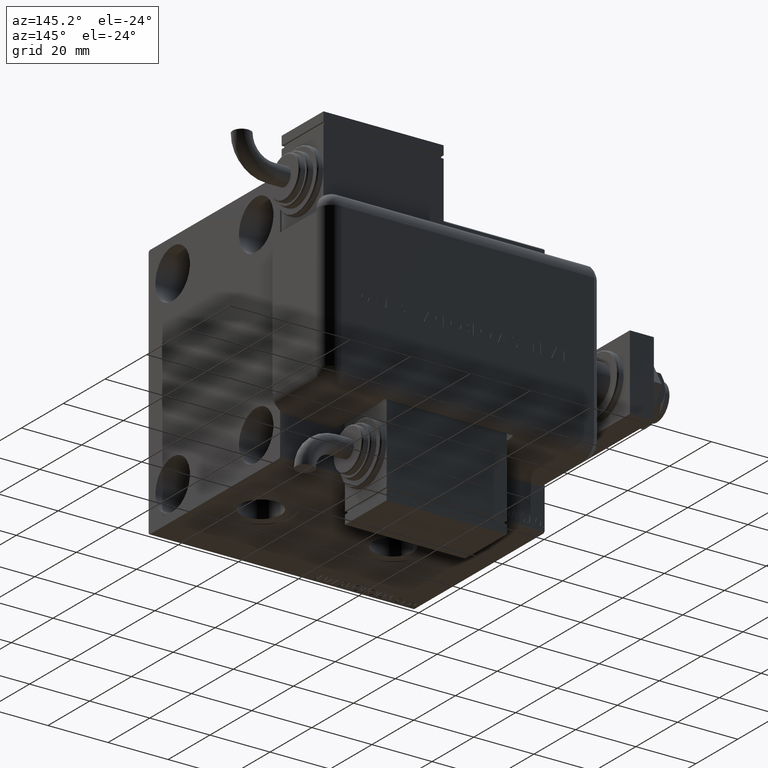
[diagram: clean part render]
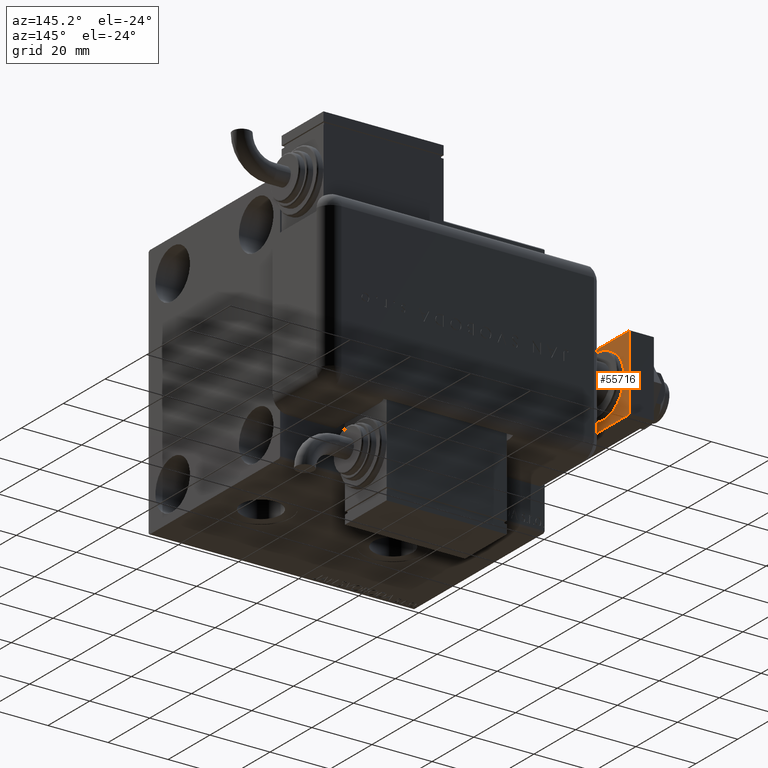
[diagram: same view with one face highlighted and labeled with its STEP entity id]
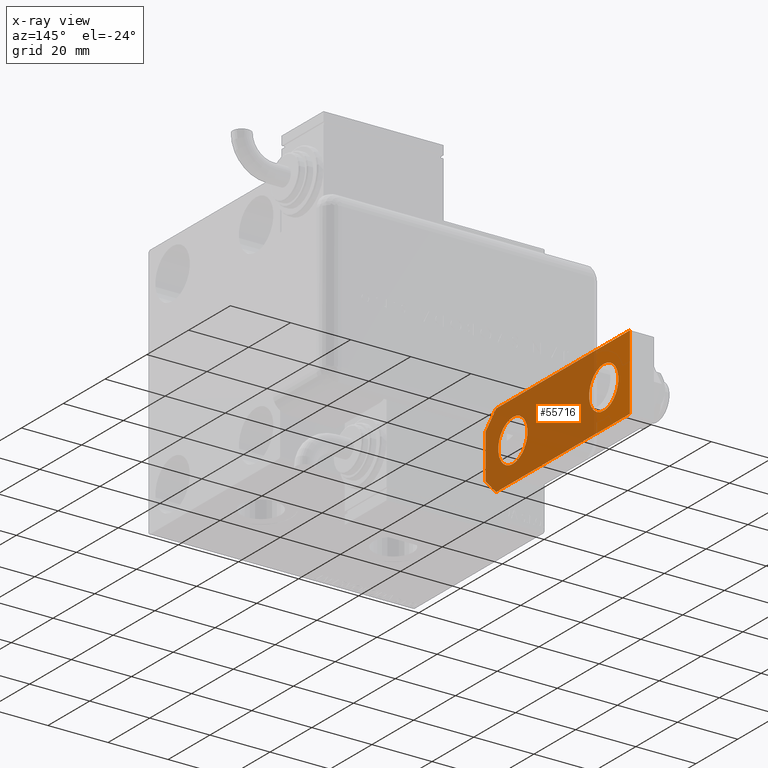
[diagram: x-ray of the same camera — body ghosted, the highlighted face saturated]
A machine part, auxiliary view. The second image highlights one B-rep face of the part: STEP entity #55716.
The next image is the same camera in x-ray: the body ghosted, the highlighted face saturated — about 80% of this face is hidden behind the body in this view.
In plain terms, the highlighted planar face has unit normal (1, 0, -0).
Its self-contained STEP definition (entity closure, byte-faithful):
#265 = EDGE_LOOP ( 'NONE', ( #36841, #16030, #14819, #20708, #1372, #57293 ) ) ;
#295 = VECTOR ( 'NONE', #14317, 1000.000000000000000 ) ;
#1042 = DIRECTION ( 'NONE',  ( -1.257045997084642611E-16, 1.000000000000000000, 0.000000000000000000 ) ) ;
#1372 = ORIENTED_EDGE ( 'NONE', *, *, #42660, .T. ) ;
#1991 = VERTEX_POINT ( 'NONE', #58403 ) ;
#2042 = CARTESIAN_POINT ( 'NONE',  ( 12.50000000000000178, 69.00000000000000000, 8.000000000000000000 ) ) ;
#3025 = VECTOR ( 'NONE', #48520, 1000.000000000000000 ) ;
#4144 = PLANE ( 'NONE',  #4923 ) ;
#4476 = CARTESIAN_POINT ( 'NONE',  ( 0.000000000000000000, 56.50000000000000711, 8.000000000000000000 ) ) ;
#4882 = CIRCLE ( 'NONE', #31943, 7.000000000000000000 ) ;
#4923 = AXIS2_PLACEMENT_3D ( 'NONE', #21711, #54017, #22312 ) ;
#5631 = ORIENTED_EDGE ( 'NONE', *, *, #8283, .F. ) ;
#5954 = DIRECTION ( 'NONE',  ( 1.000000000000000000, 0.000000000000000000, 0.000000000000000000 ) ) ;
#7043 = ORIENTED_EDGE ( 'NONE', *, *, #11796, .F. ) ;
#7817 = AXIS2_PLACEMENT_3D ( 'NONE', #47363, #24109, #5954 ) ;
#8283 = EDGE_CURVE ( 'NONE', #41895, #15300, #14555, .T. ) ;
#8467 = VECTOR ( 'NONE', #1042, 1000.000000000000000 ) ;
#9181 = VERTEX_POINT ( 'NONE', #2042 ) ;
#9256 = EDGE_LOOP ( 'NONE', ( #5631, #39769 ) ) ;
#9728 = VERTEX_POINT ( 'NONE', #14515 ) ;
#11796 = EDGE_CURVE ( 'NONE', #30920, #1991, #4882, .T. ) ;
#13828 = FACE_OUTER_BOUND ( 'NONE', #265, .T. ) ;
#14212 = DIRECTION ( 'NONE',  ( -1.759864395918499754E-16, -1.000000000000000000, 0.000000000000000000 ) ) ;
#14317 = DIRECTION ( 'NONE',  ( 0.7071067811865485719, 0.7071067811865465735, -0.000000000000000000 ) ) ;
#14515 = CARTESIAN_POINT ( 'NONE',  ( -12.50000000000000888, 5.000000000000004441, 8.000000000000000000 ) ) ;
#14555 = CIRCLE ( 'NONE', #41603, 6.999999999999998224 ) ;
#14593 = VERTEX_POINT ( 'NONE', #30343 ) ;
#14819 = ORIENTED_EDGE ( 'NONE', *, *, #17540, .T. ) ;
#15300 = VERTEX_POINT ( 'NONE', #59627 ) ;
#15339 = CARTESIAN_POINT ( 'NONE',  ( -7.000000000000000000, 13.00000000000001066, 8.000000000000000000 ) ) ;
#15347 = CARTESIAN_POINT ( 'NONE',  ( 3.851859888774471706E-31, 13.00000000000001066, 8.000000000000000000 ) ) ;
#15648 = DIRECTION ( 'NONE',  ( 1.000000000000000000, 0.000000000000000000, 0.000000000000000000 ) ) ;
#15848 = CARTESIAN_POINT ( 'NONE',  ( -6.999999999999998224, 56.50000000000000711, 8.000000000000000000 ) ) ;
#16030 = ORIENTED_EDGE ( 'NONE', *, *, #55914, .T. ) ;
#17407 = EDGE_CURVE ( 'NONE', #44113, #14593, #19157, .T. ) ;
#17540 = EDGE_CURVE ( 'NONE', #43689, #44113, #21829, .T. ) ;
#18421 = DIRECTION ( 'NONE',  ( 1.000000000000000000, 0.000000000000000000, 0.000000000000000000 ) ) ;
#19157 = LINE ( 'NONE', #31558, #295 ) ;
#19352 = VECTOR ( 'NONE', #14212, 1000.000000000000000 ) ;
#20708 = ORIENTED_EDGE ( 'NONE', *, *, #17407, .T. ) ;
#21711 = CARTESIAN_POINT ( 'NONE',  ( 0.000000000000000000, 0.000000000000000000, 8.000000000000000000 ) ) ;
#21829 = LINE ( 'NONE', #30892, #36982 ) ;
#22255 = LINE ( 'NONE', #35541, #38106 ) ;
#22312 = DIRECTION ( 'NONE',  ( 1.000000000000000000, 0.000000000000000000, 0.000000000000000000 ) ) ;
#22635 = DIRECTION ( 'NONE',  ( 0.000000000000000000, 0.000000000000000000, 1.000000000000000000 ) ) ;
#24109 = DIRECTION ( 'NONE',  ( 0.000000000000000000, 0.000000000000000000, 1.000000000000000000 ) ) ;
#27433 = FACE_BOUND ( 'NONE', #47381, .T. ) ;
#27841 = CARTESIAN_POINT ( 'NONE',  ( -7.500000000000040856, 0.000000000000000000, 8.000000000000000000 ) ) ;
#29047 = AXIS2_PLACEMENT_3D ( 'NONE', #15347, #56720, #15648 ) ;
#29453 = CARTESIAN_POINT ( 'NONE',  ( 12.50000000000001066, 0.000000000000000000, 8.000000000000000000 ) ) ;
#29564 = DIRECTION ( 'NONE',  ( 1.000000000000000000, 0.000000000000000000, 0.000000000000000000 ) ) ;
#30113 = CARTESIAN_POINT ( 'NONE',  ( -3.750000000000046629, -3.750000000000020428, 8.000000000000000000 ) ) ;
#30343 = CARTESIAN_POINT ( 'NONE',  ( 12.50000000000001066, 5.000000000000003553, 8.000000000000000000 ) ) ;
#30892 = CARTESIAN_POINT ( 'NONE',  ( -12.50000000000001066, 0.000000000000000000, 8.000000000000000000 ) ) ;
#30920 = VERTEX_POINT ( 'NONE', #15339 ) ;
#31558 = CARTESIAN_POINT ( 'NONE',  ( 3.749999999999986233, -3.749999999999997335, 8.000000000000000000 ) ) ;
#31943 = AXIS2_PLACEMENT_3D ( 'NONE', #53700, #38916, #29564 ) ;
#32858 = EDGE_CURVE ( 'NONE', #9181, #59294, #22255, .T. ) ;
#33880 = CIRCLE ( 'NONE', #7817, 6.999999999999998224 ) ;
#34826 = CIRCLE ( 'NONE', #29047, 7.000000000000000000 ) ;
#35541 = CARTESIAN_POINT ( 'NONE',  ( 12.50000000000000178, 69.00000000000000000, 8.000000000000000000 ) ) ;
#35596 = FACE_BOUND ( 'NONE', #9256, .T. ) ;
#36841 = ORIENTED_EDGE ( 'NONE', *, *, #49624, .T. ) ;
#36982 = VECTOR ( 'NONE', #57486, 1000.000000000000000 ) ;
#38106 = VECTOR ( 'NONE', #40668, 1000.000000000000000 ) ;
#38916 = DIRECTION ( 'NONE',  ( 0.000000000000000000, 0.000000000000000000, 1.000000000000000000 ) ) ;
#39449 = ORIENTED_EDGE ( 'NONE', *, *, #50931, .F. ) ;
#39769 = ORIENTED_EDGE ( 'NONE', *, *, #50919, .F. ) ;
#40668 = DIRECTION ( 'NONE',  ( -1.000000000000000000, 0.000000000000000000, 0.000000000000000000 ) ) ;
#41603 = AXIS2_PLACEMENT_3D ( 'NONE', #4476, #22635, #18421 ) ;
#41895 = VERTEX_POINT ( 'NONE', #15848 ) ;
#42660 = EDGE_CURVE ( 'NONE', #14593, #9181, #56631, .T. ) ;
#43689 = VERTEX_POINT ( 'NONE', #27841 ) ;
#44113 = VERTEX_POINT ( 'NONE', #57632 ) ;
#44298 = LINE ( 'NONE', #30113, #3025 ) ;
#47299 = CARTESIAN_POINT ( 'NONE',  ( -12.49999999999999822, 69.00000000000000000, 8.000000000000000000 ) ) ;
#47363 = CARTESIAN_POINT ( 'NONE',  ( 0.000000000000000000, 56.50000000000000711, 8.000000000000000000 ) ) ;
#47381 = EDGE_LOOP ( 'NONE', ( #7043, #39449 ) ) ;
#48520 = DIRECTION ( 'NONE',  ( 0.7071067811865450192, -0.7071067811865500152, 0.000000000000000000 ) ) ;
#49624 = EDGE_CURVE ( 'NONE', #59294, #9728, #55591, .T. ) ;
#50919 = EDGE_CURVE ( 'NONE', #15300, #41895, #33880, .T. ) ;
#50931 = EDGE_CURVE ( 'NONE', #1991, #30920, #34826, .T. ) ;
#53700 = CARTESIAN_POINT ( 'NONE',  ( 3.851859888774471706E-31, 13.00000000000001066, 8.000000000000000000 ) ) ;
#54017 = DIRECTION ( 'NONE',  ( -0.000000000000000000, 0.000000000000000000, 1.000000000000000000 ) ) ;
#55304 = CARTESIAN_POINT ( 'NONE',  ( -12.49999999999999822, 69.00000000000000000, 8.000000000000000000 ) ) ;
#55591 = LINE ( 'NONE', #55304, #19352 ) ;
#55716 = ADVANCED_FACE ( 'NONE', ( #35596, #13828, #27433 ), #4144, .T. ) ;
#55914 = EDGE_CURVE ( 'NONE', #9728, #43689, #44298, .T. ) ;
#56631 = LINE ( 'NONE', #29453, #8467 ) ;
#56720 = DIRECTION ( 'NONE',  ( 0.000000000000000000, 0.000000000000000000, 1.000000000000000000 ) ) ;
#57293 = ORIENTED_EDGE ( 'NONE', *, *, #32858, .T. ) ;
#57486 = DIRECTION ( 'NONE',  ( 1.000000000000000000, 0.000000000000000000, 0.000000000000000000 ) ) ;
#57632 = CARTESIAN_POINT ( 'NONE',  ( 7.499999999999992895, 0.000000000000000000, 8.000000000000000000 ) ) ;
#58403 = CARTESIAN_POINT ( 'NONE',  ( 7.000000000000000000, 13.00000000000001066, 8.000000000000000000 ) ) ;
#59294 = VERTEX_POINT ( 'NONE', #47299 ) ;
#59627 = CARTESIAN_POINT ( 'NONE',  ( 6.999999999999998224, 56.50000000000000711, 8.000000000000000000 ) ) ;